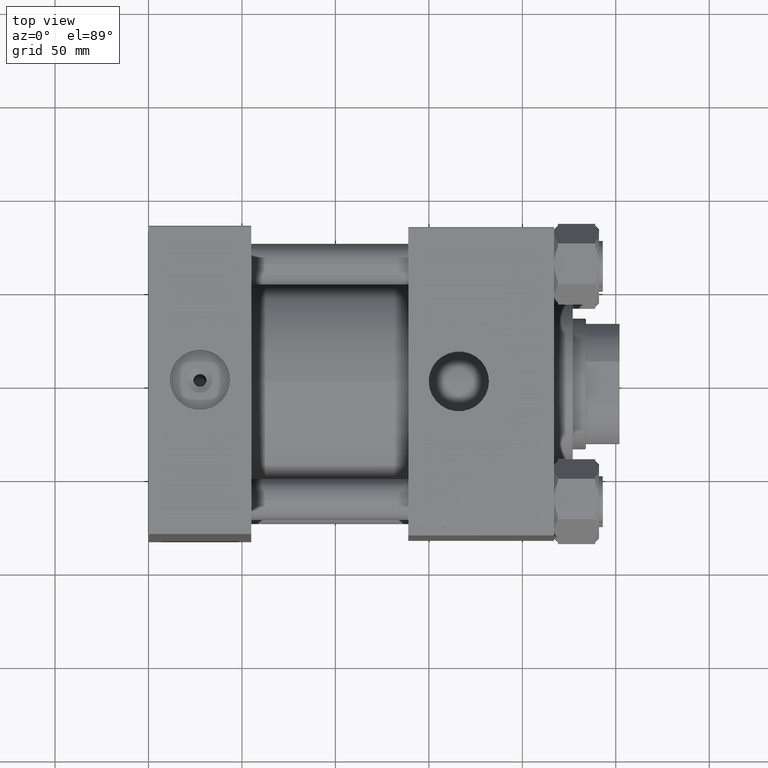
[diagram: clean part render]
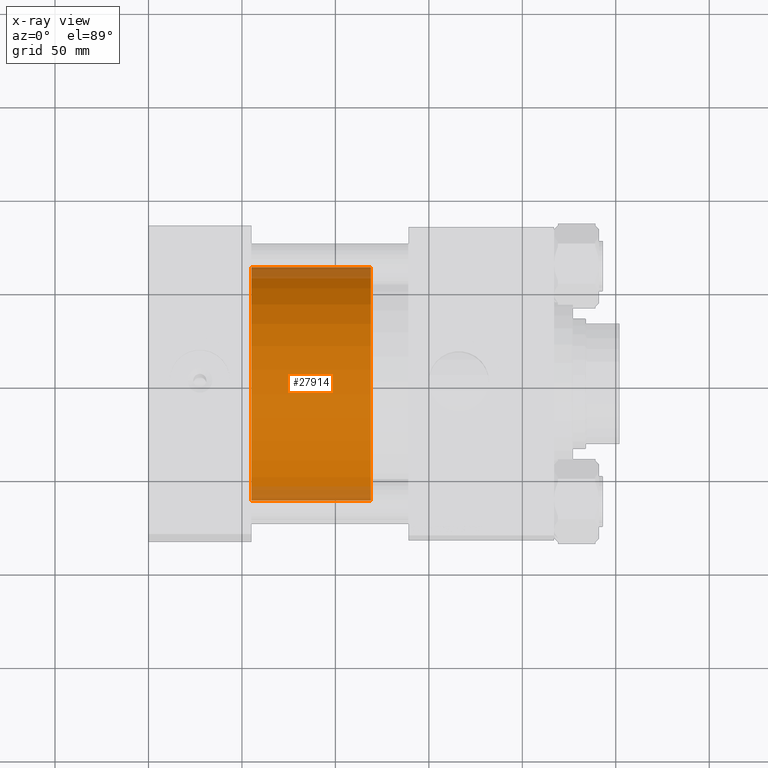
[diagram: x-ray — body ghosted, one internal face saturated and labeled with its STEP entity id]
A machine part, top view, then the same camera in x-ray: the body is ghosted and one INTERNAL B-rep face — a face not visible from any outside direction — is saturated and labeled: STEP entity #27914.
In plain terms, the highlighted cylindrical surface (partial cylindrical patch) has radius 62.5 mm, axis along (-1, 0, 0).
Its self-contained STEP definition (entity closure, byte-faithful):
#156 = AXIS2_PLACEMENT_3D ( 'NONE', #46127, #26707, #42309 ) ;
#1969 = DIRECTION ( 'NONE',  ( -0.000000000000000000, -0.000000000000000000, -1.000000000000000000 ) ) ;
#2049 = CARTESIAN_POINT ( 'NONE',  ( -62.50000000000000000, 0.000000000000000000, 0.000000000000000000 ) ) ;
#2484 = CARTESIAN_POINT ( 'NONE',  ( 62.50000000000000000, 7.654042494670957804E-15, 64.00000000000000000 ) ) ;
#3043 = FACE_OUTER_BOUND ( 'NONE', #31597, .T. ) ;
#6117 = CYLINDRICAL_SURFACE ( 'NONE', #28006, 62.50000000000000000 ) ;
#6394 = EDGE_CURVE ( 'NONE', #24795, #33944, #25485, .T. ) ;
#7973 = CIRCLE ( 'NONE', #36531, 62.50000000000000000 ) ;
#9133 = EDGE_CURVE ( 'NONE', #33944, #19566, #36968, .T. ) ;
#9382 = EDGE_CURVE ( 'NONE', #24795, #38393, #13663, .T. ) ;
#9800 = CARTESIAN_POINT ( 'NONE',  ( -62.50000000000000000, 0.000000000000000000, 64.00000000000000000 ) ) ;
#13663 = LINE ( 'NONE', #44580, #22304 ) ;
#14487 = CARTESIAN_POINT ( 'NONE',  ( 62.50000000000000000, 7.654042494670957804E-15, 64.00000000000000000 ) ) ;
#14567 = DIRECTION ( 'NONE',  ( 1.000000000000000000, 0.000000000000000000, 0.000000000000000000 ) ) ;
#15645 = ORIENTED_EDGE ( 'NONE', *, *, #6394, .F. ) ;
#18610 = CARTESIAN_POINT ( 'NONE',  ( 0.000000000000000000, 0.000000000000000000, 64.00000000000000000 ) ) ;
#19566 = VERTEX_POINT ( 'NONE', #35082 ) ;
#22304 = VECTOR ( 'NONE', #29492, 1000.000000000000000 ) ;
#24795 = VERTEX_POINT ( 'NONE', #9800 ) ;
#25485 = CIRCLE ( 'NONE', #156, 62.50000000000000000 ) ;
#26707 = DIRECTION ( 'NONE',  ( 0.000000000000000000, 0.000000000000000000, 1.000000000000000000 ) ) ;
#27914 = ADVANCED_FACE ( 'NONE', ( #3043 ), #6117, .T. ) ;
#28006 = AXIS2_PLACEMENT_3D ( 'NONE', #18610, #41629, #34205 ) ;
#28907 = ORIENTED_EDGE ( 'NONE', *, *, #41569, .T. ) ;
#29492 = DIRECTION ( 'NONE',  ( -0.000000000000000000, -0.000000000000000000, -1.000000000000000000 ) ) ;
#30446 = ORIENTED_EDGE ( 'NONE', *, *, #9382, .T. ) ;
#30469 = VECTOR ( 'NONE', #1969, 1000.000000000000000 ) ;
#31597 = EDGE_LOOP ( 'NONE', ( #33556, #15645, #30446, #28907 ) ) ;
#33556 = ORIENTED_EDGE ( 'NONE', *, *, #9133, .F. ) ;
#33944 = VERTEX_POINT ( 'NONE', #14487 ) ;
#34205 = DIRECTION ( 'NONE',  ( -1.000000000000000000, 0.000000000000000000, 0.000000000000000000 ) ) ;
#35082 = CARTESIAN_POINT ( 'NONE',  ( 62.50000000000000000, 7.654042494670957804E-15, 0.000000000000000000 ) ) ;
#36531 = AXIS2_PLACEMENT_3D ( 'NONE', #48807, #49565, #14567 ) ;
#36968 = LINE ( 'NONE', #2484, #30469 ) ;
#38393 = VERTEX_POINT ( 'NONE', #2049 ) ;
#41569 = EDGE_CURVE ( 'NONE', #38393, #19566, #7973, .T. ) ;
#41629 = DIRECTION ( 'NONE',  ( -0.000000000000000000, -0.000000000000000000, -1.000000000000000000 ) ) ;
#42309 = DIRECTION ( 'NONE',  ( 1.000000000000000000, 0.000000000000000000, 0.000000000000000000 ) ) ;
#44580 = CARTESIAN_POINT ( 'NONE',  ( -62.50000000000000000, 0.000000000000000000, 64.00000000000000000 ) ) ;
#46127 = CARTESIAN_POINT ( 'NONE',  ( 0.000000000000000000, 0.000000000000000000, 64.00000000000000000 ) ) ;
#48807 = CARTESIAN_POINT ( 'NONE',  ( 0.000000000000000000, 0.000000000000000000, 0.000000000000000000 ) ) ;
#49565 = DIRECTION ( 'NONE',  ( 0.000000000000000000, 0.000000000000000000, 1.000000000000000000 ) ) ;